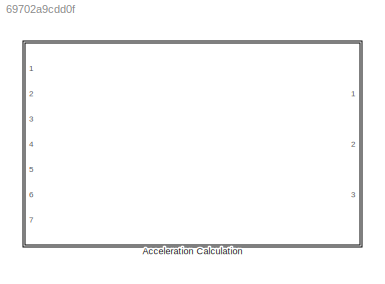
MODEL slx_69702a9cdd0f
KIND library
CONFIG AbsTol = auto
CONFIG EnableMultiTasking = off
CONFIG FixedStep = auto
CONFIG MaxStep = auto
CONFIG MinStep = auto
CONFIG RelTol = 1e-3
CONFIG SampleTimeConstraint = Unconstrained
CONFIG Solver = VariableStepAuto
CONFIG SolverName = VariableStepAuto
CONFIG StartTime = 0.0
CONFIG StopTime = 10.0
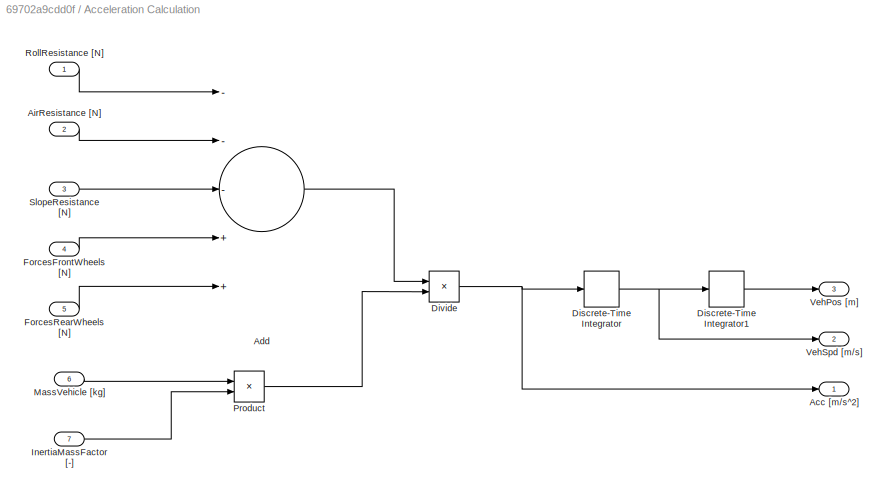
BLOCK [SubSystem] Acceleration Calculation
  Ports = [7, 3]
  RequestExecContextInheritance = off
BLOCK [Outport] Acceleration Calculation/Acc [m//s^2]
  IconDisplay = Port number
  SampleTime = GlobalSampleTime
  VectorParamsAs1DForOutWhenUnconnected = off
BLOCK [Sum] Acceleration Calculation/Add
  InputSameDT = off
  Inputs = ---++
  OutDataTypeStr = Inherit: Inherit via internal rule
  Ports = [5, 1]
  SaturateOnIntegerOverflow = off
BLOCK [Inport] Acceleration Calculation/AirResistance [N]
  IconDisplay = Port number
  Port = 2
  SampleTime = LocalSampleTime
BLOCK [DiscreteIntegrator] Acceleration Calculation/Discrete-Time Integrator
  ICPrevOutput = DiscIntNeverNeededParam
  ICPrevScaledInput = DiscIntNeverNeededParam
  InitialCondition = InitialCondition
  InitialConditionSetting = Auto
  LimitOutput = on
  LowerSaturationLimit = 0
  Ports = [1, 1]
  SampleTime = -1
BLOCK [DiscreteIntegrator] Acceleration Calculation/Discrete-Time Integrator1
  ICPrevOutput = DiscIntNeverNeededParam
  ICPrevScaledInput = DiscIntNeverNeededParam
  InitialConditionSetting = Auto
  Ports = [1, 1]
  SampleTime = -1
BLOCK [Product] Acceleration Calculation/Divide
  InputSameDT = off
  Inputs = */
  OutDataTypeStr = Inherit: Inherit via internal rule
  Ports = [2, 1]
  RndMeth = Floor
  SaturateOnIntegerOverflow = off
BLOCK [Inport] Acceleration Calculation/ForcesFrontWheels [N]
  IconDisplay = Port number
  Port = 4
  SampleTime = LocalSampleTime
BLOCK [Inport] Acceleration Calculation/ForcesRearWheels [N]
  IconDisplay = Port number
  Port = 5
  SampleTime = LocalSampleTime
BLOCK [Inport] Acceleration Calculation/InertiaMassFactor [-]
  IconDisplay = Port number
  Port = 7
  SampleTime = LocalSampleTime
BLOCK [Inport] Acceleration Calculation/MassVehicle [kg]
  IconDisplay = Port number
  Port = 6
  SampleTime = LocalSampleTime
BLOCK [Product] Acceleration Calculation/Product
  InputSameDT = off
  OutDataTypeStr = Inherit: Inherit via internal rule
  Ports = [2, 1]
  RndMeth = Floor
  SaturateOnIntegerOverflow = off
BLOCK [Inport] Acceleration Calculation/RollResistance [N]
  IconDisplay = Port number
  SampleTime = LocalSampleTime
BLOCK [Inport] Acceleration Calculation/SlopeResistance [N]
  IconDisplay = Port number
  Port = 3
  SampleTime = LocalSampleTime
BLOCK [Outport] Acceleration Calculation/VehPos [m]
  IconDisplay = Port number
  Port = 3
  SampleTime = GlobalSampleTime
  VectorParamsAs1DForOutWhenUnconnected = off
BLOCK [Outport] Acceleration Calculation/VehSpd [m//s]
  IconDisplay = Port number
  Port = 2
  SampleTime = GlobalSampleTime
  VectorParamsAs1DForOutWhenUnconnected = off
LINE Acceleration Calculation/Add:1 -> Acceleration Calculation/Divide:1
LINE Acceleration Calculation/AirResistance [N]:1 -> Acceleration Calculation/Add:2
LINE Acceleration Calculation/Discrete-Time Integrator1:1 -> Acceleration Calculation/VehPos [m]:1
NET Acceleration Calculation/Discrete-Time Integrator:1 -> Acceleration Calculation/Discrete-Time Integrator1:1, Acceleration Calculation/VehSpd [m//s]:1
NET Acceleration Calculation/Divide:1 -> Acceleration Calculation/Acc [m//s^2]:1, Acceleration Calculation/Discrete-Time Integrator:1
LINE Acceleration Calculation/ForcesFrontWheels [N]:1 -> Acceleration Calculation/Add:4
LINE Acceleration Calculation/ForcesRearWheels [N]:1 -> Acceleration Calculation/Add:5
LINE Acceleration Calculation/InertiaMassFactor [-]:1 -> Acceleration Calculation/Product:2
LINE Acceleration Calculation/MassVehicle [kg]:1 -> Acceleration Calculation/Product:1
LINE Acceleration Calculation/Product:1 -> Acceleration Calculation/Divide:2
LINE Acceleration Calculation/RollResistance [N]:1 -> Acceleration Calculation/Add:1
LINE Acceleration Calculation/SlopeResistance [N]:1 -> Acceleration Calculation/Add:3
note: NET lines group one-source signal fan-out (src -> all destinations, sorted); 1:1 wires keep LINE
